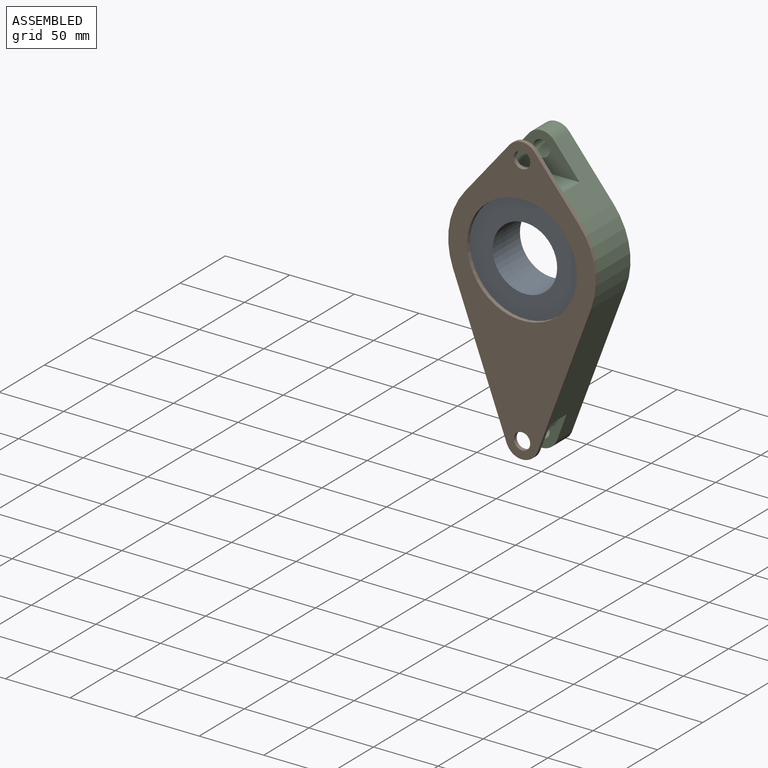
[diagram: assembled view]
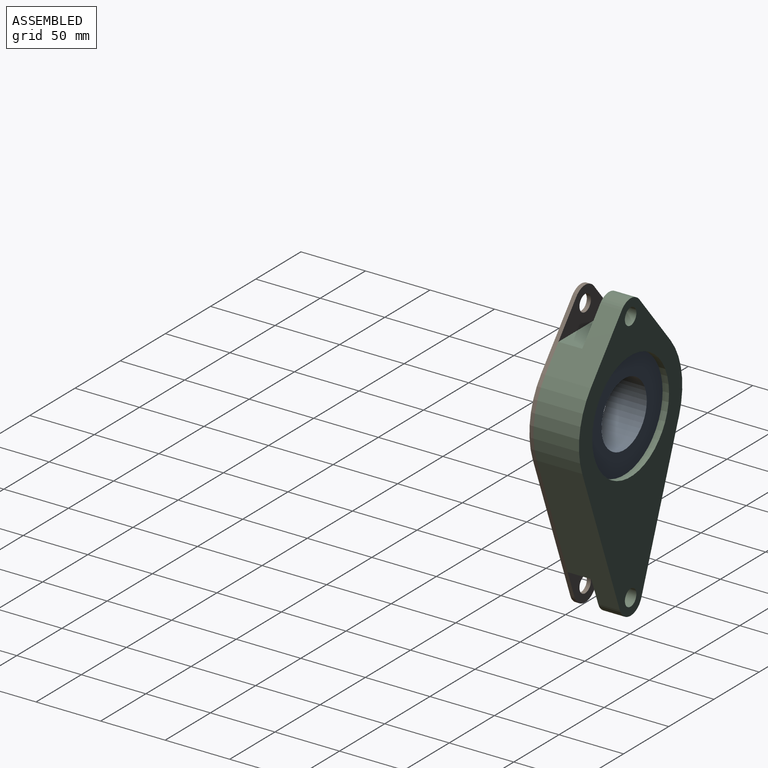
[diagram: assembled view, second angle]
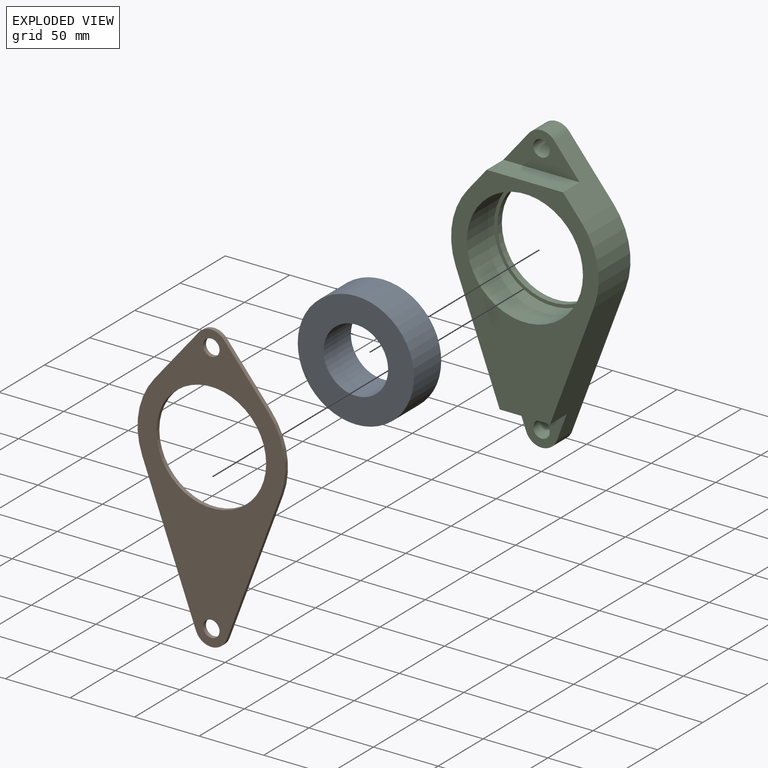
[diagram: exploded view]
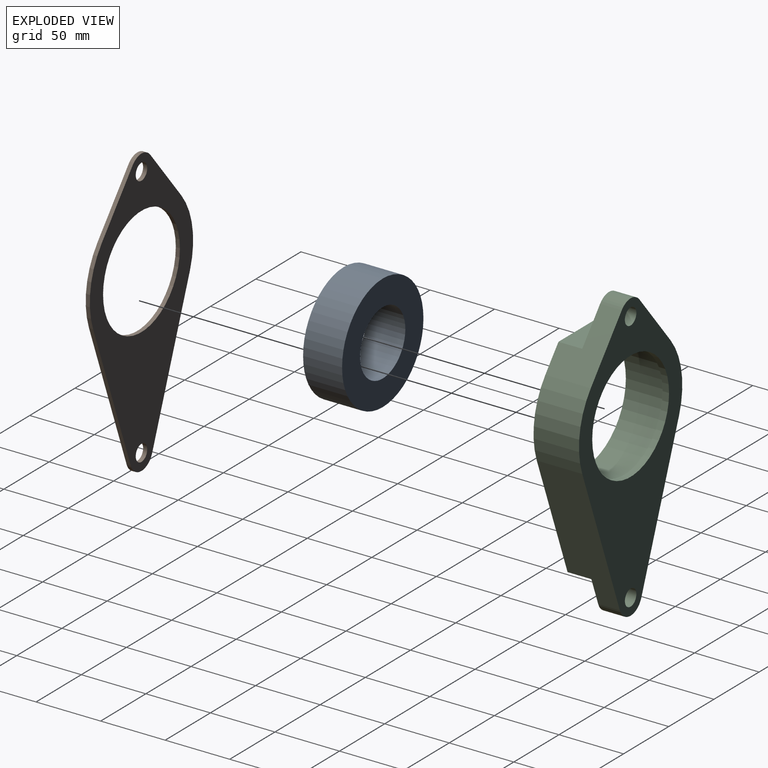
[diagram: exploded view, second angle]
ASSEMBLY  parts=3 mates=2
PART A: 4 faces, bbox 90x30.2x90 mm
  f0: cylinder r=25mm len=50mm, axis (0,1,0), area 4743.8mm2, adj f2,f3
  f1: cylinder r=45mm len=90mm, axis (0,1,0), area 8538.8mm2, adj f2,f3
  f2: plane 90x90mm, normal (0,-1,0), area 4398.2mm2, adj f0,f1
  f3: plane 90x90mm, normal (0,1,0), area 4398.2mm2, adj f0,f1
PART B: 13 faces, bbox 114.3x3.2x222.3 mm
  f0: plane 41.56x34.29mm, normal (-0.77,0,0.64), area 171.1mm2, adj f1,f9,f11,f12
  f1: cylinder r=57.15mm len=56.37mm, axis (0,1,0), area 190mm2, adj f0,f2,f11,f12
  f2: plane 111.44x41.64mm, normal (-0.94,0,-0.35), area 377.7mm2, adj f1,f3,f11,f12
  f3: cylinder r=12.7mm len=23.79mm, axis (0,1,0), area 97.8mm2, adj f2,f4,f11,f12
  f4: plane 111.44x41.64mm, normal (0.94,0,-0.35), area 377.7mm2, adj f3,f5,f11,f12
  f5: cylinder r=57.15mm len=56.37mm, axis (0,1,0), area 190mm2, adj f4,f6,f11,f12
  f6: plane 41.56x34.29mm, normal (0.77,0,0.64), area 171.1mm2, adj f5,f9,f11,f12
  f7: cylinder r=42.5mm len=85mm, axis (0,1,0), area 847.8mm2, adj f11,f12
  f8: cylinder r=6.35mm len=12.7mm, axis (0,1,0), area 126.7mm2, adj f11,f12
  f9: cylinder r=12.7mm len=19.59mm, axis (0,1,0), area 71mm2, adj f0,f6,f11,f12
  f10: cylinder r=6.35mm len=12.7mm, axis (0,1,0), area 126.7mm2, adj f11,f12
  f11: plane 222.25x114.3mm, normal (0,-1,0), area 9904.2mm2, adj f0,f1,f2,f3,f4,f5,f6,f7
  f12: plane 222.25x114.3mm, normal (0,1,0), area 9904.2mm2, adj f0,f1,f2,f3,f4,f5,f6,f7
PART C: 19 faces, bbox 114.3x35.2x222.3 mm
  f0: cylinder r=6.35mm len=16.79mm, axis (0,-1,0), area 669.7mm2, adj f13,f18
  f1: cylinder r=6.35mm len=16.79mm, axis (0,-1,0), area 669.7mm2, adj f13,f16
  f2: plane 165.1x114.3mm, normal (0,-1,0), area 7684mm2, adj f4,f5,f6,f8,f9,f10,f14,f15
  f3: plane 90x90mm, normal (0,-1,0), area 687.2mm2, adj f11,f14
  f4: plane 41.56x35.2mm, normal (-0.77,0,0.64), area 1324.7mm2, adj f2,f5,f12,f13,f17,f18
  f5: cylinder r=57.15mm len=56.37mm, axis (0,-1,0), area 2106.9mm2, adj f2,f4,f6,f13
  f6: plane 111.44x41.64mm, normal (-0.94,0,-0.35), area 3788.2mm2, adj f2,f5,f7,f13,f15,f16
  f7: cylinder r=12.7mm len=23.79mm, axis (0,-1,0), area 517.2mm2, adj f6,f8,f13,f16
  f8: plane 111.44x41.64mm, normal (0.94,0,-0.35), area 3788.2mm2, adj f2,f7,f9,f13,f15,f16
  f9: cylinder r=57.15mm len=56.37mm, axis (0,-1,0), area 2106.9mm2, adj f2,f8,f10,f13
  f10: plane 41.56x35.2mm, normal (0.77,0,0.64), area 1324.7mm2, adj f2,f9,f12,f13,f17,f18
  f11: cylinder r=42.5mm len=85mm, axis (0,-1,0), area 1335.2mm2, adj f3,f13
  f12: cylinder r=12.7mm len=19.59mm, axis (0,-1,0), area 375.6mm2, adj f4,f10,f13,f18
  f13: plane 222.25x114.3mm, normal (0,1,0), area 9904.2mm2, adj f0,f1,f4,f5,f6,f7,f8,f9
  f14: cylinder r=45mm len=90mm, axis (0,1,0), area 8538.8mm2, adj f2,f3
  f15: plane 38.98x18.42mm, normal (0,0,-1), area 717.8mm2, adj f2,f6,f8,f16
  f16: plane 38.98x28.58mm, normal (0,-1,0), area 653.9mm2, adj f1,f6,f7,f8,f15
  f17: plane 59.12x18.42mm, normal (0,0,1), area 1088.7mm2, adj f2,f4,f10,f18
  f18: plane 59.12x28.58mm, normal (0,-1,0), area 879.1mm2, adj f0,f4,f10,f12,f17
PLACE A t=(170.04,-65.56,69.58)mm
PLACE B t=(335.01,-95.76,54.92)mm
PLACE C t=(-15.78,-65.56,69.58)mm fixed
MATE fastened B.f12 <-> C.f2  axis (0,1,0) through (28.3,-95.76,105.95)mm
MATE revolute A.f0 <-> C.f5  axis (0,1,0) through (-15.78,-65.56,69.58)mm
